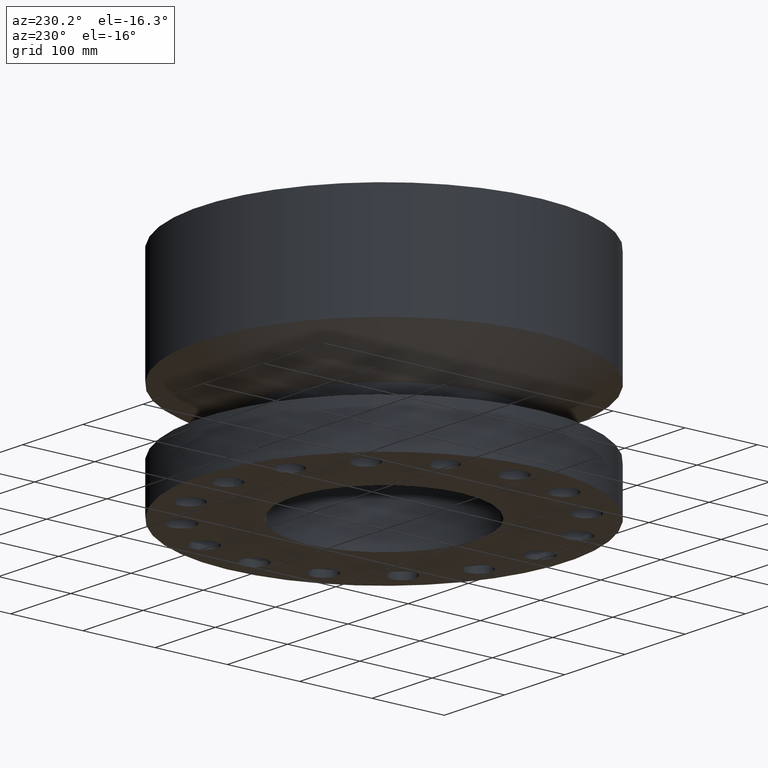
[diagram: clean part render]
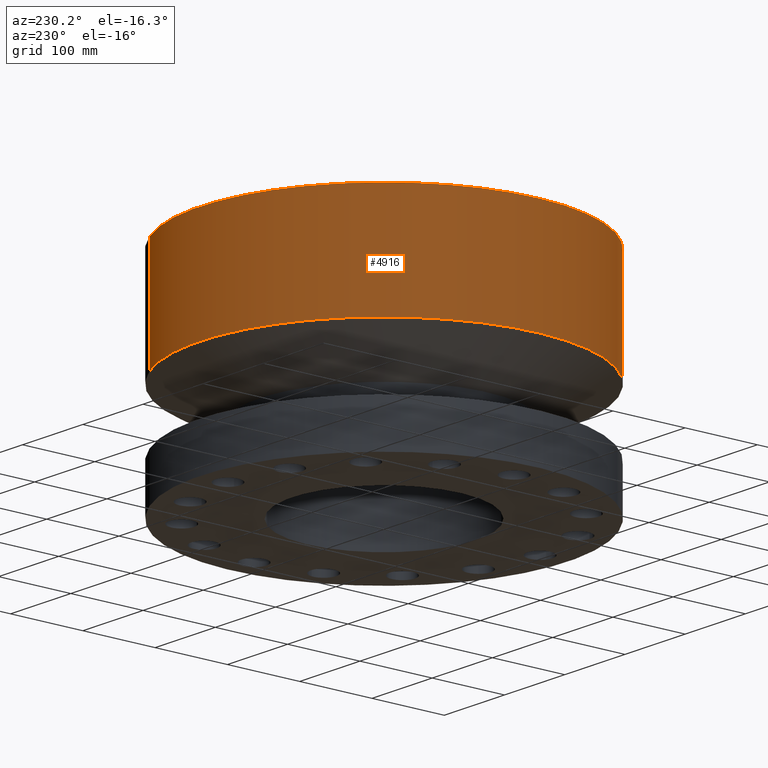
[diagram: same view with one face highlighted and labeled with its STEP entity id]
A machine part, auxiliary view. The second image highlights one B-rep face of the part: STEP entity #4916.
In plain terms, the highlighted cylindrical surface (partial cylindrical patch) has radius 254 mm, axis along (0, 0, -1).
Its self-contained STEP definition (entity closure, byte-faithful):
#429=AXIS2_PLACEMENT_3D('Cylinder Axis2P3D',#426,#427,#428) ;
#2026=AXIS2_PLACEMENT_3D('Circle Axis2P3D',#2024,#2025,$) ;
#4907=AXIS2_PLACEMENT_3D('Circle Axis2P3D',#4905,#4906,$) ;
#426=CARTESIAN_POINT('Axis2P3D Location',(0.,0.,5.75000000002)) ;
#2002=CARTESIAN_POINT('Vertex',(4.79425538606,8.77582561894,5.87638837489)) ;
#2009=CARTESIAN_POINT('Vertex',(-4.79425538606,-8.77582561894,5.87638837489)) ;
#2024=CARTESIAN_POINT('Axis2P3D Location',(0.,0.,5.87638837489)) ;
#4879=CARTESIAN_POINT('Line Origine',(4.79425538606,8.77582561894,8.81319418747)) ;
#4883=CARTESIAN_POINT('Vertex',(4.79425538606,8.77582561894,11.75)) ;
#4890=CARTESIAN_POINT('Vertex',(-4.79425538606,-8.77582561894,11.75)) ;
#4893=CARTESIAN_POINT('Line Origine',(-4.79425538606,-8.77582561894,8.81319418747)) ;
#4905=CARTESIAN_POINT('Axis2P3D Location',(0.,0.,11.75)) ;
#427=DIRECTION('Axis2P3D Direction',(0.,0.,-0.0393700787402)) ;
#428=DIRECTION('Axis2P3D XDirection',(-0.0188750212049,-0.0345504945626,0.)) ;
#2025=DIRECTION('Axis2P3D Direction',(-0.,0.,0.0393700787402)) ;
#4880=DIRECTION('Vector Direction',(0.,0.,-0.0393700787402)) ;
#4894=DIRECTION('Vector Direction',(0.,0.,-0.0393700787402)) ;
#4906=DIRECTION('Axis2P3D Direction',(0.,0.,-0.0393700787402)) ;
#4881=VECTOR('Line Direction',#4880,0.0393700787402) ;
#4895=VECTOR('Line Direction',#4894,0.0393700787402) ;
#4911=ORIENTED_EDGE('',*,*,#2028,.F.) ;
#4912=ORIENTED_EDGE('',*,*,#4897,.T.) ;
#4913=ORIENTED_EDGE('',*,*,#4909,.T.) ;
#4914=ORIENTED_EDGE('',*,*,#4885,.F.) ;
#4916=ADVANCED_FACE('PartBody',(#4915),#430,.T.) ;
#2027=CIRCLE('generated circle',#2026,10.) ;
#4908=CIRCLE('generated circle',#4907,10.) ;
#430=CYLINDRICAL_SURFACE('generated cylinder',#429,10.) ;
#2028=EDGE_CURVE('',#2010,#2003,#2027,.F.) ;
#4885=EDGE_CURVE('',#2003,#4884,#4882,.F.) ;
#4897=EDGE_CURVE('',#2010,#4891,#4896,.F.) ;
#4909=EDGE_CURVE('',#4891,#4884,#4908,.T.) ;
#4910=EDGE_LOOP('',(#4911,#4912,#4913,#4914)) ;
#4915=FACE_OUTER_BOUND('',#4910,.T.) ;
#4882=LINE('Line',#4879,#4881) ;
#4896=LINE('Line',#4893,#4895) ;
#2003=VERTEX_POINT('',#2002) ;
#2010=VERTEX_POINT('',#2009) ;
#4884=VERTEX_POINT('',#4883) ;
#4891=VERTEX_POINT('',#4890) ;